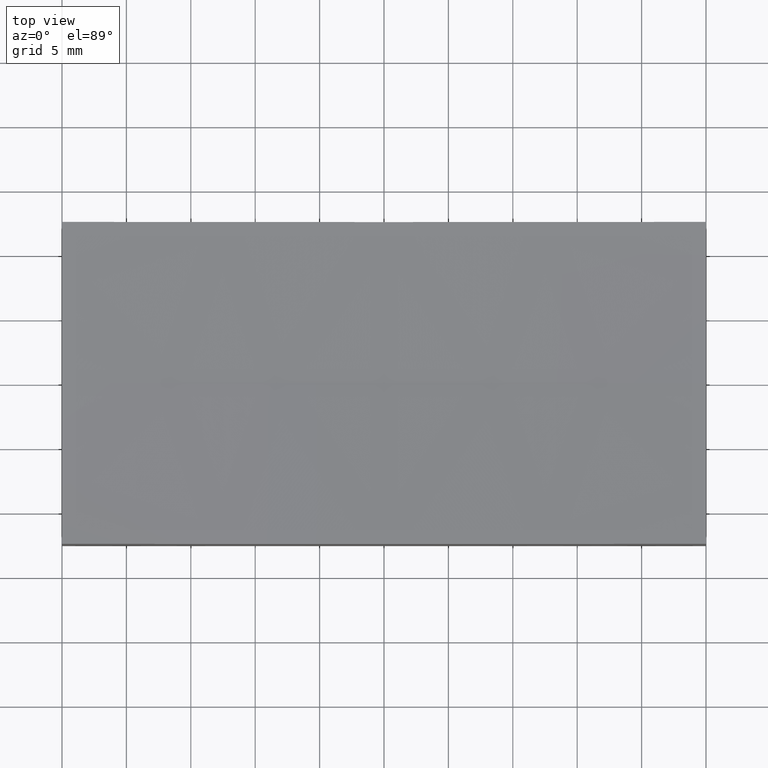
[diagram: clean part render]
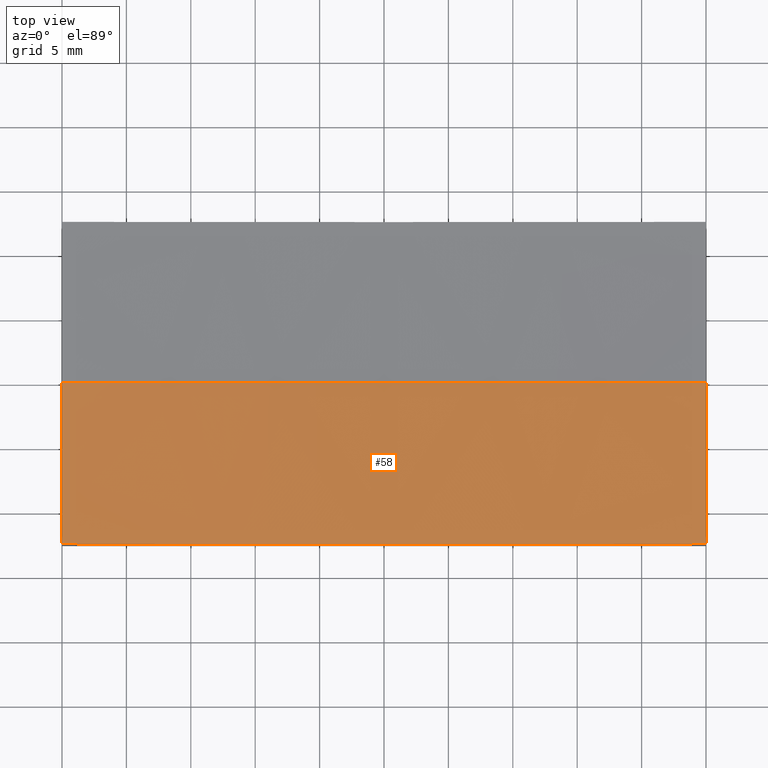
[diagram: same view with one face highlighted and labeled with its STEP entity id]
A machine part, top view. The second image highlights one B-rep face of the part: STEP entity #58.
In plain terms, the highlighted spherical surface has radius 400 mm.
Its self-contained STEP definition (entity closure, byte-faithful):
#1 = CARTESIAN_POINT ( 'NONE',  ( -24.99999999999998934, -12.49999999999999645, 9.977757512190821743 ) ) ;
#2 = VERTEX_POINT ( 'NONE', #1 ) ;
#7 = AXIS2_PLACEMENT_3D ( 'NONE', #30, #205, #47 ) ;
#11 = DIRECTION ( 'NONE',  ( 1.000000000000000000, -2.775557561562891351E-16, -0.000000000000000000 ) ) ;
#17 = CIRCLE ( 'NONE', #7, 399.8046397929868476 ) ;
#23 = SPHERICAL_SURFACE ( 'NONE', #201, 400.0000000000000000 ) ;
#30 = CARTESIAN_POINT ( 'NONE',  ( 0.000000000000000000, -12.49999999999999645, 409.0000000000000568 ) ) ;
#33 = EDGE_LOOP ( 'NONE', ( #136, #109, #128, #75, #161 ) ) ;
#34 = FACE_OUTER_BOUND ( 'NONE', #33, .T. ) ;
#46 = CARTESIAN_POINT ( 'NONE',  ( -25.00000000000000000, -3.469446951953614189E-15, 409.0000000000000568 ) ) ;
#47 = DIRECTION ( 'NONE',  ( 1.154631945610162802E-14, 0.000000000000000000, 1.000000000000000000 ) ) ;
#58 = ADVANCED_FACE ( 'NONE', ( #34 ), #23, .F. ) ;
#59 = VERTEX_POINT ( 'NONE', #198 ) ;
#65 = AXIS2_PLACEMENT_3D ( 'NONE', #67, #213, #158 ) ;
#66 = CIRCLE ( 'NONE', #218, 399.2179855667828292 ) ;
#67 = CARTESIAN_POINT ( 'NONE',  ( 0.000000000000000000, 0.000000000000000000, 409.0000000000000568 ) ) ;
#69 = CARTESIAN_POINT ( 'NONE',  ( 0.000000000000000000, 0.000000000000000000, 409.0000000000000568 ) ) ;
#71 = DIRECTION ( 'NONE',  ( 1.224646799147353207E-16, -1.000000000000000000, -1.194747633266363858E-35 ) ) ;
#75 = ORIENTED_EDGE ( 'NONE', *, *, #199, .T. ) ;
#80 = CIRCLE ( 'NONE', #214, 399.2179855667828292 ) ;
#87 = DIRECTION ( 'NONE',  ( -2.780994506169196219E-16, -1.000000000000000000, 0.000000000000000000 ) ) ;
#106 = DIRECTION ( 'NONE',  ( 1.000000000000000000, 1.224646799147353207E-16, 0.000000000000000000 ) ) ;
#109 = ORIENTED_EDGE ( 'NONE', *, *, #245, .T. ) ;
#118 = VERTEX_POINT ( 'NONE', #184 ) ;
#128 = ORIENTED_EDGE ( 'NONE', *, *, #236, .T. ) ;
#129 = CIRCLE ( 'NONE', #233, 400.0000000000000000 ) ;
#136 = ORIENTED_EDGE ( 'NONE', *, *, #248, .F. ) ;
#147 = CARTESIAN_POINT ( 'NONE',  ( 25.00000000000000000, -6.938893903907228378E-15, 409.0000000000000568 ) ) ;
#158 = DIRECTION ( 'NONE',  ( 0.000000000000000000, 0.000000000000000000, 1.000000000000000000 ) ) ;
#160 = CIRCLE ( 'NONE', #65, 400.0000000000000000 ) ;
#161 = ORIENTED_EDGE ( 'NONE', *, *, #220, .T. ) ;
#164 = CARTESIAN_POINT ( 'NONE',  ( 0.000000000000000000, 0.000000000000000000, 409.0000000000000568 ) ) ;
#172 = DIRECTION ( 'NONE',  ( -1.000000000000000000, -1.387778780781445676E-16, 0.000000000000000000 ) ) ;
#184 = CARTESIAN_POINT ( 'NONE',  ( 25.00000000000000000, 0.000000000000000000, 9.782014433217216975 ) ) ;
#189 = CARTESIAN_POINT ( 'NONE',  ( 2.445391256381599328E-14, 0.000000000000000000, 9.000000000000007105 ) ) ;
#198 = CARTESIAN_POINT ( 'NONE',  ( -25.00000000000000000, -3.061616997868383043E-15, 9.782014433217216975 ) ) ;
#199 = EDGE_CURVE ( 'NONE', #215, #118, #66, .T. ) ;
#201 = AXIS2_PLACEMENT_3D ( 'NONE', #164, #237, #243 ) ;
#205 = DIRECTION ( 'NONE',  ( -0.000000000000000000, -1.000000000000000000, -0.000000000000000000 ) ) ;
#206 = DIRECTION ( 'NONE',  ( -1.390497253084598109E-16, 1.000000000000000000, 0.000000000000000000 ) ) ;
#211 = CARTESIAN_POINT ( 'NONE',  ( 24.99999999999999645, -12.50000000000000000, 9.977757512190766676 ) ) ;
#213 = DIRECTION ( 'NONE',  ( 0.000000000000000000, 1.000000000000000000, -0.000000000000000000 ) ) ;
#214 = AXIS2_PLACEMENT_3D ( 'NONE', #46, #172, #206 ) ;
#215 = VERTEX_POINT ( 'NONE', #211 ) ;
#218 = AXIS2_PLACEMENT_3D ( 'NONE', #147, #11, #87 ) ;
#220 = EDGE_CURVE ( 'NONE', #118, #221, #160, .T. ) ;
#221 = VERTEX_POINT ( 'NONE', #189 ) ;
#233 = AXIS2_PLACEMENT_3D ( 'NONE', #69, #71, #106 ) ;
#236 = EDGE_CURVE ( 'NONE', #2, #215, #17, .T. ) ;
#237 = DIRECTION ( 'NONE',  ( 0.000000000000000000, -1.000000000000000000, -0.000000000000000000 ) ) ;
#243 = DIRECTION ( 'NONE',  ( 1.000000000000000000, 0.000000000000000000, 0.000000000000000000 ) ) ;
#245 = EDGE_CURVE ( 'NONE', #59, #2, #80, .T. ) ;
#248 = EDGE_CURVE ( 'NONE', #59, #221, #129, .T. ) ;